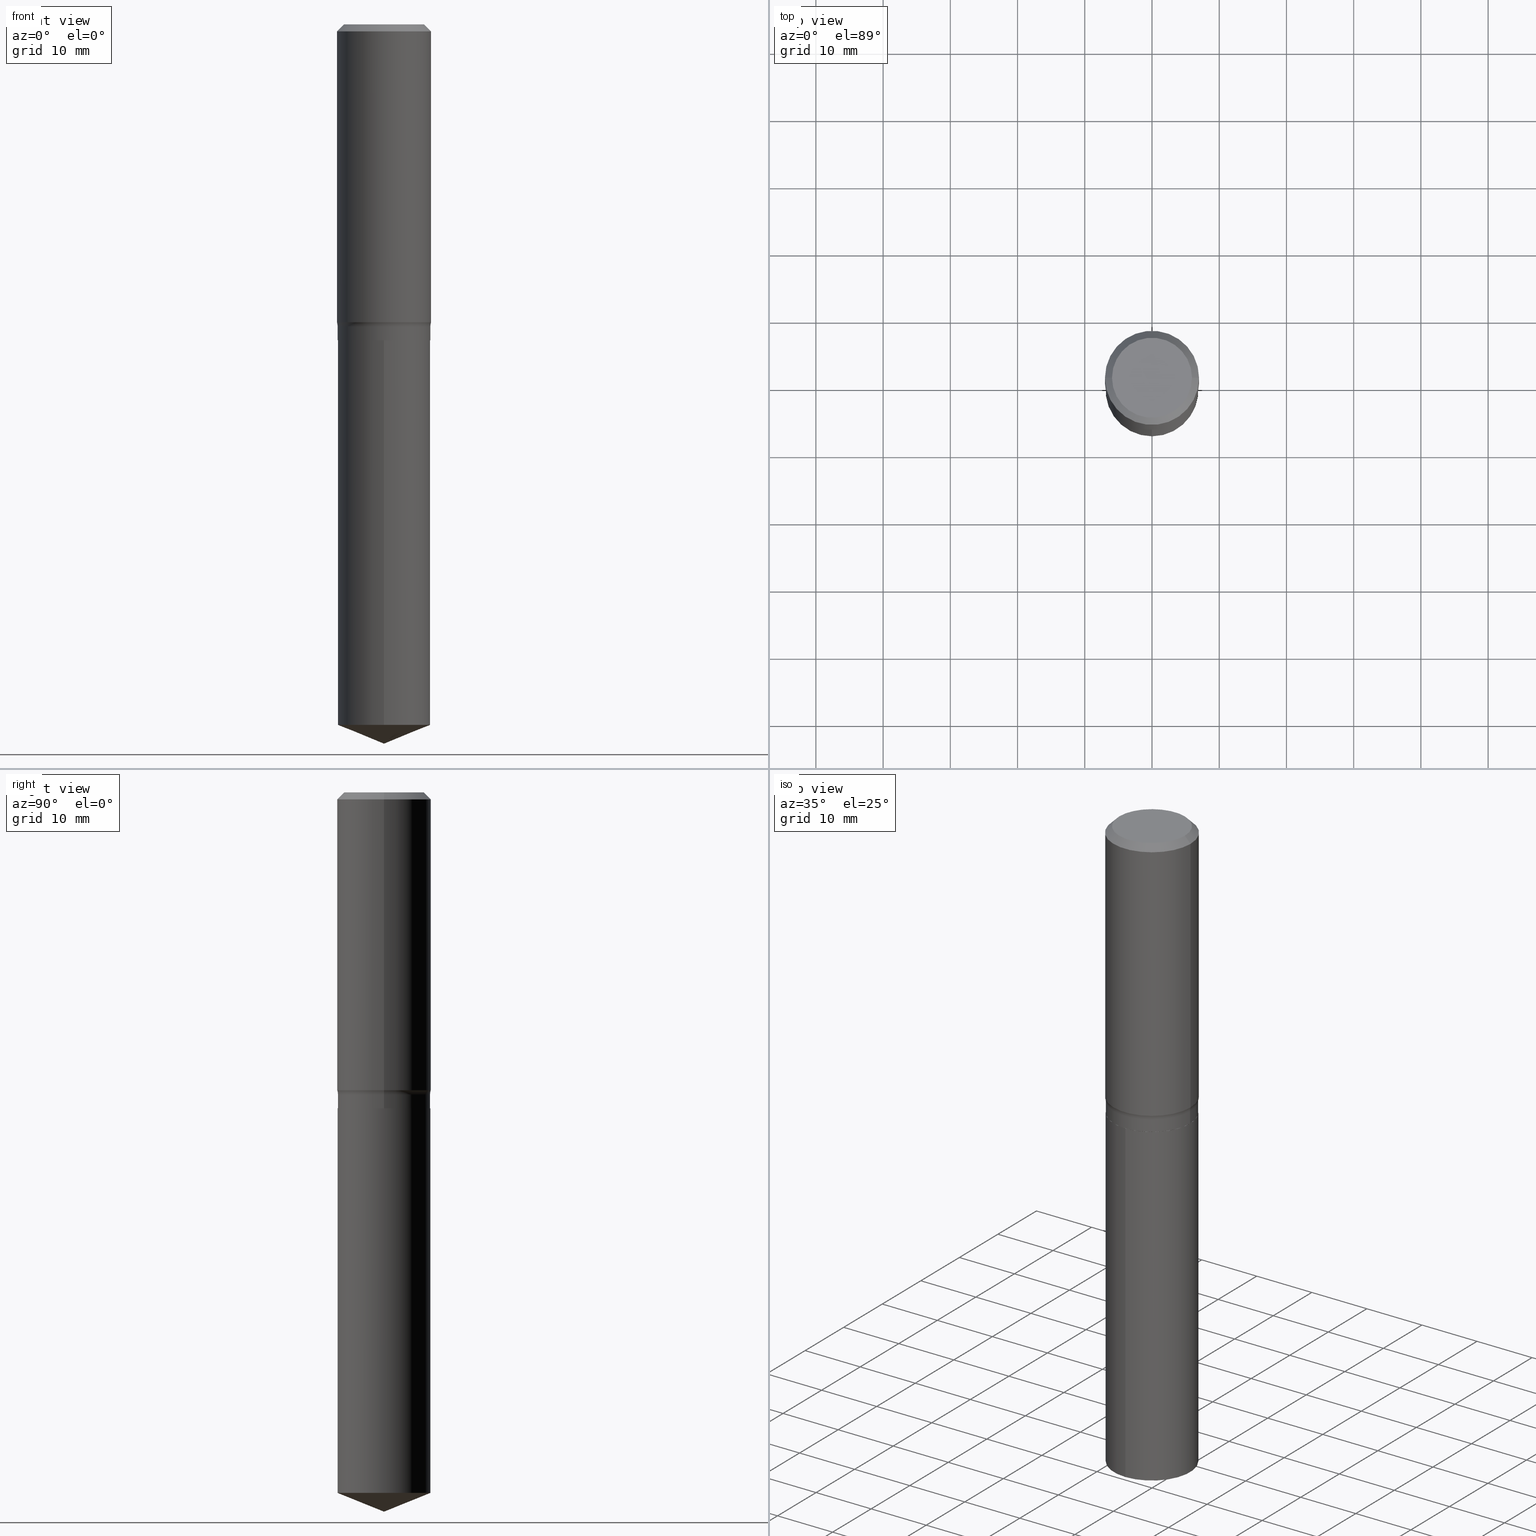
[diagram: canonical four-view strip — front | top / right | iso, engineering-drawing reading convention]
A machine part, canonical four-view strip (front | top / right | iso — engineering-drawing reading convention). The complete STEP part file that produces these views, byte-faithful:
ISO-10303-21;
HEADER;
FILE_DESCRIPTION (( 'STEP AP203' ),
    '1' );
FILE_NAME ('69215.STEP',
    '2024-04-19T17:24:39',
    ( '' ),
    ( '' ),
    'SwSTEP 2.0',
    'SolidWorks 2023',
    '' );
FILE_SCHEMA (( 'CONFIG_CONTROL_DESIGN' ));
ENDSEC;

DATA;
#1 = AXIS2_PLACEMENT_3D ( 'NONE', #415, #236, #5 ) ;
#2 =( NAMED_UNIT ( * ) PLANE_ANGLE_UNIT ( ) SI_UNIT ( $, .RADIAN. ) );
#3 = DIRECTION ( 'NONE',  ( -2.445468806185136597E-29, 3.491481338843145583E-15, 1.000000000000000000 ) ) ;
#4 = MANIFOLD_SOLID_BREP ( 'Body-Move/Copy2[1]', #490 ) ;
#5 = DIRECTION ( 'NONE',  ( -6.982962677686266711E-15, -1.000000000000000000, 3.498761904101812964E-15 ) ) ;
#6 = ORIENTED_EDGE ( 'NONE', *, *, #469, .T. ) ;
#7 = DIRECTION ( 'NONE',  ( -2.445706889125734915E-29, 3.491140390521369310E-15, 1.000000000000000000 ) ) ;
#8 = FACE_OUTER_BOUND ( 'NONE', #213, .T. ) ;
#9 = VECTOR ( 'NONE', #127, 39.37007874015748143 ) ;
#10 = VECTOR ( 'NONE', #36, 39.37007874015748143 ) ;
#11 = DATE_AND_TIME ( #95, #317 ) ;
#12 = EDGE_CURVE ( 'NONE', #221, #382, #433, .T. ) ;
#13 = VERTEX_POINT ( 'NONE', #78 ) ;
#14 = CARTESIAN_POINT ( 'NONE',  ( -0.2756000000000000116, 1.780166675422558965E-15, -0.04134000000000025155 ) ) ;
#15 = DATE_AND_TIME ( #472, #460 ) ;
#16 = CARTESIAN_POINT ( 'NONE',  ( -0.2756000000000002892, -4.132259510290183971E-15, -1.744392909189378837 ) ) ;
#17 = EDGE_CURVE ( 'NONE', #198, #196, #323, .T. ) ;
#18 = DIRECTION ( 'NONE',  ( 2.438088387897960049E-29, -3.491481338843145188E-15, -1.000000000000000000 ) ) ;
#19 = SECURITY_CLASSIFICATION_LEVEL ( 'unclassified' ) ;
#20 = CARTESIAN_POINT ( 'NONE',  ( -1.002970424325033577E-46, 1.431975951230896486E-32, 4.101342130344485961E-18 ) ) ;
#21 = FACE_OUTER_BOUND ( 'NONE', #43, .T. ) ;
#22 = DIRECTION ( 'NONE',  ( -2.445468806185136597E-29, 3.491481338843145583E-15, 1.000000000000000000 ) ) ;
#23 = ADVANCED_FACE ( 'NONE', ( #8 ), #192, .T. ) ;
#24 = CIRCLE ( 'NONE', #427, 0.2342600000000000238 ) ;
#25 = ORIENTED_EDGE ( 'NONE', *, *, #276, .T. ) ;
#26 = CARTESIAN_POINT ( 'NONE',  ( 0.2342600000000000238, -1.821115673845785155E-15, 4.101342130356573868E-18 ) ) ;
#27 = ORIENTED_EDGE ( 'NONE', *, *, #281, .F. ) ;
#28 = DIRECTION ( 'NONE',  ( -2.445706889125734915E-29, 3.491140390521369310E-15, 1.000000000000000000 ) ) ;
#29 = ORIENTED_EDGE ( 'NONE', *, *, #445, .F. ) ;
#30 = DIRECTION ( 'NONE',  ( 1.000000000000000000, -6.982962677686267499E-15, 0.000000000000000000 ) ) ;
#31 = ORIENTED_EDGE ( 'NONE', *, *, #481, .T. ) ;
#32 = ORIENTED_EDGE ( 'NONE', *, *, #178, .F. ) ;
#33 = ADVANCED_FACE ( 'NONE', ( #158 ), #279, .F. ) ;
#34 =( NAMED_UNIT ( * ) SI_UNIT ( $, .STERADIAN. ) SOLID_ANGLE_UNIT ( ) );
#35 = ORIENTED_EDGE ( 'NONE', *, *, #313, .F. ) ;
#36 = DIRECTION ( 'NONE',  ( -2.445468806185136877E-29, 3.491481338843145188E-15, 1.000000000000000000 ) ) ;
#37 = CARTESIAN_POINT ( 'NONE',  ( 1.010956804476941697E-30, -1.443378385477765070E-16, -0.04134000000000025155 ) ) ;
#38 = AXIS2_PLACEMENT_3D ( 'NONE', #211, #278, #428 ) ;
#39 = DIRECTION ( 'NONE',  ( -6.982962677686265133E-15, -1.000000000000000000, 4.022599659362065925E-15 ) ) ;
#40 = EDGE_LOOP ( 'NONE', ( #341, #116 ) ) ;
#41 = EDGE_CURVE ( 'NONE', #88, #231, #45, .T. ) ;
#42 = DIRECTION ( 'NONE',  ( 6.982962677686265922E-15, 1.000000000000000000, -3.491140390521369704E-15 ) ) ;
#43 = EDGE_LOOP ( 'NONE', ( #120, #148, #144, #384 ) ) ;
#44 = CARTESIAN_POINT ( 'NONE',  ( 4.325789771260888308E-29, -6.176081340279640661E-15, -1.768900000000000139 ) ) ;
#45 = CIRCLE ( 'NONE', #141, 0.2716500000000000026 ) ;
#46 = AXIS2_PLACEMENT_3D ( 'NONE', #491, #117, #238 ) ;
#47 = COORDINATED_UNIVERSAL_TIME_OFFSET ( 5, 0, .BEHIND. ) ;
#48 = FACE_OUTER_BOUND ( 'NONE', #40, .T. ) ;
#49 = APPROVAL_STATUS ( 'not_yet_approved' ) ;
#50 = CARTESIAN_POINT ( 'NONE',  ( 0.2756000000000000116, -2.068842352518111732E-15, -0.04134000000000025155 ) ) ;
#51 = EDGE_CURVE ( 'NONE', #221, #198, #420, .T. ) ;
#52 = APPROVAL_ROLE ( '' ) ;
#53 = DIRECTION ( 'NONE',  ( -0.7071067811865453523, 2.468850131082234184E-15, -0.7071067811865496822 ) ) ;
#54 = ADVANCED_FACE ( 'NONE', ( #241 ), #322, .T. ) ;
#55 = CC_DESIGN_DATE_AND_TIME_ASSIGNMENT ( #11, #124, ( #82 ) ) ;
#56 = CALENDAR_DATE ( 2024, 19, 4 ) ;
#57 = CONICAL_SURFACE ( 'NONE', #486, 0.2756000000000000116, 0.7853981633974452814 ) ;
#58 = CARTESIAN_POINT ( 'NONE',  ( 0.2716500000000000026, -8.073003151673115070E-15, -1.768900000000000139 ) ) ;
#59 = CC_DESIGN_APPROVAL ( #296, ( #215 ) ) ;
#60 = DIRECTION ( 'NONE',  ( 1.000000000000000000, -6.982962677686266711E-15, 4.876176775795936353E-29 ) ) ;
#61 = FACE_OUTER_BOUND ( 'NONE', #254, .T. ) ;
#62 = EDGE_LOOP ( 'NONE', ( #410, #76, #450, #265 ) ) ;
#63 = AXIS2_PLACEMENT_3D ( 'NONE', #360, #210, #131 ) ;
#64 = DIRECTION ( 'NONE',  ( 6.588037525764794446E-15, 0.9271838545667895337, 0.3746065934159066302 ) ) ;
#65 = VECTOR ( 'NONE', #197, 39.37007874015748143 ) ;
#66 = VERTEX_POINT ( 'NONE', #58 ) ;
#67 = APPROVAL_PERSON_ORGANIZATION ( #282, #483, #243 ) ;
#68 = CARTESIAN_POINT ( 'NONE',  ( 1.930189341692412359E-15, 0.2716499999999935633, -1.850400000000001155 ) ) ;
#69 = EDGE_LOOP ( 'NONE', ( #478, #387 ) ) ;
#70 = CARTESIAN_POINT ( 'NONE',  ( -8.598532850776800283E-28, 1.227390631678855176E-13, 35.15747874015747954 ) ) ;
#71 = ORIENTED_EDGE ( 'NONE', *, *, #191, .F. ) ;
#72 = CARTESIAN_POINT ( 'NONE',  ( 4.523872744561885153E-29, -6.458891328725936072E-15, -1.849900000000000322 ) ) ;
#73 = AXIS2_PLACEMENT_3D ( 'NONE', #102, #145, #407 ) ;
#74 = CARTESIAN_POINT ( 'NONE',  ( 1.003391885295695671E-28, -1.432424324015218274E-14, -4.102846275751880434 ) ) ;
#75 = ADVANCED_FACE ( 'NONE', ( #48 ), #367, .F. ) ;
#76 = ORIENTED_EDGE ( 'NONE', *, *, #126, .F. ) ;
#77 = FACE_OUTER_BOUND ( 'NONE', #217, .T. ) ;
#78 = CARTESIAN_POINT ( 'NONE',  ( 0.2716499999999999471, -8.355813140119411270E-15, -1.849900000000000322 ) ) ;
#79 = EDGE_CURVE ( 'NONE', #231, #88, #269, .T. ) ;
#80 = CARTESIAN_POINT ( 'NONE',  ( -0.2756000000000001227, 1.958255779754836984E-15, -1.355658510874252567E-29 ) ) ;
#81 = TOROIDAL_SURFACE ( 'NONE', #63, 0.3496499999999999608, 0.07799999999999999989 ) ;
#82 = PRODUCT_DEFINITION ( 'UNKNOWN', '', #114, #133 ) ;
#83 = CIRCLE ( 'NONE', #194, 0.2756000000000000116 ) ;
#84 = CC_DESIGN_PERSON_AND_ORGANIZATION_ASSIGNMENT ( #245, #199, ( #114 ) ) ;
#85 = CARTESIAN_POINT ( 'NONE',  ( 4.325789771260888308E-29, -6.176081340279640661E-15, -1.768900000000000139 ) ) ;
#86 = DIRECTION ( 'NONE',  ( 1.000000000000000000, -6.982962677686267499E-15, 0.000000000000000000 ) ) ;
#87 = FACE_OUTER_BOUND ( 'NONE', #295, .T. ) ;
#88 = VERTEX_POINT ( 'NONE', #362 ) ;
#89 = PERSON_AND_ORGANIZATION ( #458, #309 ) ;
#90 = DIRECTION ( 'NONE',  ( -2.445468806185136597E-29, 3.491481338843145583E-15, 1.000000000000000000 ) ) ;
#91 = CARTESIAN_POINT ( 'NONE',  ( 4.325789771260888308E-29, -6.176081340279640661E-15, -1.768900000000000139 ) ) ;
#92 = APPROVAL_ROLE ( '' ) ;
#93 = CYLINDRICAL_SURFACE ( 'NONE', #306, 0.2716500000000000026 ) ;
#94 = DIRECTION ( 'NONE',  ( 1.000000000000000000, -6.982962677686268288E-15, 0.000000000000000000 ) ) ;
#95 = CALENDAR_DATE ( 2024, 19, 4 ) ;
#96 = AXIS2_PLACEMENT_3D ( 'NONE', #318, #319, #473 ) ;
#97 = DIRECTION ( 'NONE',  ( 1.000000000000000000, -6.982962677686267499E-15, 4.876157962347795834E-29 ) ) ;
#98 = DIRECTION ( 'NONE',  ( 2.445468806185136597E-29, -3.491481338843145583E-15, -1.000000000000000000 ) ) ;
#99 = EDGE_LOOP ( 'NONE', ( #273, #31, #489, #32 ) ) ;
#100 = EDGE_CURVE ( 'NONE', #13, #350, #111, .T. ) ;
#101 = DIMENSIONAL_EXPONENTS ( 1.000000000000000000, 0.000000000000000000, 0.000000000000000000, 0.000000000000000000, 0.000000000000000000, 0.000000000000000000, 0.000000000000000000 ) ;
#102 = CARTESIAN_POINT ( 'NONE',  ( 4.525095478964976833E-29, -6.460637069395356787E-15, -1.850400000000000045 ) ) ;
#103 = ORIENTED_EDGE ( 'NONE', *, *, #154, .T. ) ;
#104 = ADVANCED_FACE ( 'NONE', ( #21 ), #93, .T. ) ;
#105 = DIRECTION ( 'NONE',  ( -2.445706889125734915E-29, 3.491140390521369310E-15, 1.000000000000000000 ) ) ;
#106 = AXIS2_PLACEMENT_3D ( 'NONE', #85, #353, #386 ) ;
#107 = DIRECTION ( 'NONE',  ( -2.445468806185136597E-29, 3.491481338843145583E-15, 1.000000000000000000 ) ) ;
#108 = ORIENTED_EDGE ( 'NONE', *, *, #191, .T. ) ;
#109 = CARTESIAN_POINT ( 'NONE',  ( -0.2711500000000000021, -4.534000441381845907E-15, -1.850400000000000045 ) ) ;
#110 = ORIENTED_EDGE ( 'NONE', *, *, #51, .T. ) ;
#111 = CIRCLE ( 'NONE', #338, 0.2716499999999999471 ) ;
#112 = CARTESIAN_POINT ( 'NONE',  ( 4.525095478964977394E-29, -6.460637069395357576E-15, -1.850400000000000267 ) ) ;
#113 = VECTOR ( 'NONE', #482, 39.37007874015748143 ) ;
#114 = PRODUCT_DEFINITION_FORMATION_WITH_SPECIFIED_SOURCE ( 'ANY', '', #228, .NOT_KNOWN. ) ;
#115 =( CONVERSION_BASED_UNIT ( 'INCH', #272 ) LENGTH_UNIT ( ) NAMED_UNIT ( #101 ) );
#116 = ORIENTED_EDGE ( 'NONE', *, *, #320, .T. ) ;
#117 = DIRECTION ( 'NONE',  ( -2.445468806185136597E-29, 3.491481338843145583E-15, 1.000000000000000000 ) ) ;
#118 = DIRECTION ( 'NONE',  ( -6.982962677686265133E-15, -1.000000000000000000, 3.016949744521549444E-15 ) ) ;
#119 = CARTESIAN_POINT ( 'NONE',  ( -0.2716499999999999471, 1.930189341692311779E-15, -1.336228717267745096E-29 ) ) ;
#120 = ORIENTED_EDGE ( 'NONE', *, *, #268, .F. ) ;
#121 = CIRCLE ( 'NONE', #149, 0.2342600000000000238 ) ;
#122 = VECTOR ( 'NONE', #379, 39.37007874015748143 ) ;
#123 = DIRECTION ( 'NONE',  ( 1.000000000000000000, -6.982962677686264344E-15, 0.000000000000000000 ) ) ;
#124 = DATE_TIME_ROLE ( 'creation_date' ) ;
#125 = DIRECTION ( 'NONE',  ( 2.445468806185136597E-29, -3.491481338843145583E-15, -1.000000000000000000 ) ) ;
#126 = EDGE_CURVE ( 'NONE', #304, #225, #121, .T. ) ;
#127 = DIRECTION ( 'NONE',  ( -2.445468806185136877E-29, 3.491481338843145188E-15, 1.000000000000000000 ) ) ;
#128 = PERSON_AND_ORGANIZATION_ROLE ( 'classification_officer' ) ;
#129 = FACE_OUTER_BOUND ( 'NONE', #492, .T. ) ;
#130 = ADVANCED_FACE ( 'NONE', ( #129 ), #81, .F. ) ;
#131 = DIRECTION ( 'NONE',  ( 1.000000000000000000, -6.982962677686265922E-15, 4.883557194083113462E-29 ) ) ;
#132 = PERSON_AND_ORGANIZATION_ROLE ( 'design_owner' ) ;
#133 = DESIGN_CONTEXT ( 'detailed design', #465, 'design' ) ;
#134 = DIRECTION ( 'NONE',  ( -6.982962677686265133E-15, -1.000000000000000000, 3.016949744521549444E-15 ) ) ;
#135 = CONICAL_SURFACE ( 'NONE', #324, 0.2756000000000000116, 0.7853981633974452814 ) ;
#136 = LINE ( 'NONE', #216, #113 ) ;
#137 = DIRECTION ( 'NONE',  ( -6.982962677686266711E-15, -1.000000000000000000, 3.491481338843145583E-15 ) ) ;
#138 = CARTESIAN_POINT ( 'NONE',  ( 4.525095478964976833E-29, -6.460637069395356787E-15, -1.850400000000000045 ) ) ;
#139 = EDGE_LOOP ( 'NONE', ( #423, #406, #237, #442 ) ) ;
#140 = ADVANCED_FACE ( 'NONE', ( #170 ), #474, .T. ) ;
#141 = AXIS2_PLACEMENT_3D ( 'NONE', #112, #263, #118 ) ;
#142 = CARTESIAN_POINT ( 'NONE',  ( 4.265858445153167625E-29, -6.090515290045022138E-15, -1.744392909189378837 ) ) ;
#143 = CIRCLE ( 'NONE', #347, 0.2756000000000002337 ) ;
#144 = ORIENTED_EDGE ( 'NONE', *, *, #266, .T. ) ;
#145 = DIRECTION ( 'NONE',  ( -2.445468806185136597E-29, 3.491481338843145583E-15, 1.000000000000000000 ) ) ;
#146 = ORIENTED_EDGE ( 'NONE', *, *, #100, .F. ) ;
#147 = LINE ( 'NONE', #157, #414 ) ;
#148 = ORIENTED_EDGE ( 'NONE', *, *, #456, .T. ) ;
#149 = AXIS2_PLACEMENT_3D ( 'NONE', #20, #430, #97 ) ;
#150 = DIRECTION ( 'NONE',  ( -1.000000000000000000, 7.105427357601001859E-15, 0.000000000000000000 ) ) ;
#151 = CONICAL_SURFACE ( 'NONE', #46, 0.2711500000000000021, 0.7853981633977896726 ) ;
#152 = CC_DESIGN_SECURITY_CLASSIFICATION ( #215, ( #114 ) ) ;
#153 = ORIENTED_EDGE ( 'NONE', *, *, #100, .T. ) ;
#154 = EDGE_CURVE ( 'NONE', #370, #252, #249, .T. ) ;
#155 = DIRECTION ( 'NONE',  ( -2.438088387897960049E-29, 3.491481338843145188E-15, 1.000000000000000000 ) ) ;
#156 = EDGE_LOOP ( 'NONE', ( #446, #110, #35, #161 ) ) ;
#157 = CARTESIAN_POINT ( 'NONE',  ( 0.2716499999999999471, -1.896921811393474014E-15, 1.324613421144965822E-29 ) ) ;
#158 = FACE_OUTER_BOUND ( 'NONE', #139, .T. ) ;
#159 = CIRCLE ( 'NONE', #201, 0.2716500000000000026 ) ;
#160 = MANIFOLD_SOLID_BREP ( 'Body-Move/Copy2[2]', #337 ) ;
#161 = ORIENTED_EDGE ( 'NONE', *, *, #467, .F. ) ;
#162 = CALENDAR_DATE ( 2024, 19, 4 ) ;
#163 = FACE_OUTER_BOUND ( 'NONE', #219, .T. ) ;
#164 = EDGE_CURVE ( 'NONE', #66, #382, #476, .T. ) ;
#165 = DIRECTION ( 'NONE',  ( -2.445468806185136597E-29, 3.491481338843145583E-15, 1.000000000000000000 ) ) ;
#166 = CIRCLE ( 'NONE', #73, 0.2711500000000000021 ) ;
#167 = CC_DESIGN_PERSON_AND_ORGANIZATION_ASSIGNMENT ( #89, #132, ( #228 ) ) ;
#168 = FACE_OUTER_BOUND ( 'NONE', #62, .T. ) ;
#169 = COORDINATED_UNIVERSAL_TIME_OFFSET ( 5, 0, .BEHIND. ) ;
#170 = FACE_OUTER_BOUND ( 'NONE', #462, .T. ) ;
#171 = CARTESIAN_POINT ( 'NONE',  ( 4.525095478964977954E-29, -6.460637069395358365E-15, -1.850400000000000489 ) ) ;
#172 = AXIS2_PLACEMENT_3D ( 'NONE', #44, #267, #356 ) ;
#173 = CC_DESIGN_PERSON_AND_ORGANIZATION_ASSIGNMENT ( #468, #247, ( #114 ) ) ;
#174 = CIRCLE ( 'NONE', #290, 0.2711500000000000021 ) ;
#175 = CARTESIAN_POINT ( 'NONE',  ( -0.2716499999999999471, -4.387296992810476194E-15, -1.849900000000000322 ) ) ;
#176 = DIRECTION ( 'NONE',  ( 1.000000000000000000, -6.982962677686267499E-15, 4.876176775795935793E-29 ) ) ;
#177 = ORIENTED_EDGE ( 'NONE', *, *, #268, .T. ) ;
#178 = EDGE_CURVE ( 'NONE', #304, #198, #283, .T. ) ;
#179 = CARTESIAN_POINT ( 'NONE',  ( -1.002970424325033577E-46, 1.431975951230896486E-32, 4.101342130344485961E-18 ) ) ;
#180 = ADVANCED_FACE ( 'NONE', ( #163 ), #325, .T. ) ;
#181 = DIRECTION ( 'NONE',  ( -2.445468806185136597E-29, 3.491481338843145583E-15, 1.000000000000000000 ) ) ;
#182 = VECTOR ( 'NONE', #397, 39.37007874015748143 ) ;
#183 = EDGE_LOOP ( 'NONE', ( #71, #377, #380 ) ) ;
#184 = LOCAL_TIME ( 13, 24, 39.00000000000000000, #401 ) ;
#185 = LINE ( 'NONE', #419, #10 ) ;
#186 = ORIENTED_EDGE ( 'NONE', *, *, #187, .F. ) ;
#187 = EDGE_CURVE ( 'NONE', #233, #221, #261, .T. ) ;
#188 = ORIENTED_EDGE ( 'NONE', *, *, #312, .T. ) ;
#189 = ADVANCED_FACE ( 'NONE', ( #168 ), #57, .T. ) ;
#190 = LINE ( 'NONE', #232, #65 ) ;
#191 = EDGE_CURVE ( 'NONE', #336, #370, #425, .T. ) ;
#192 = CONICAL_SURFACE ( 'NONE', #260, 0.2711500000000000021, 0.7853981633977896726 ) ;
#193 = ORIENTED_EDGE ( 'NONE', *, *, #437, .F. ) ;
#194 = AXIS2_PLACEMENT_3D ( 'NONE', #294, #301, #475 ) ;
#195 = LINE ( 'NONE', #119, #280 ) ;
#196 = VERTEX_POINT ( 'NONE', #50 ) ;
#197 = DIRECTION ( 'NONE',  ( 0.7071067811865453523, -7.319954787623248157E-15, -0.7071067811865496822 ) ) ;
#198 = VERTEX_POINT ( 'NONE', #204 ) ;
#199 = PERSON_AND_ORGANIZATION_ROLE ( 'design_supplier' ) ;
#200 = ORIENTED_EDGE ( 'NONE', *, *, #226, .T. ) ;
#201 = AXIS2_PLACEMENT_3D ( 'NONE', #74, #7, #39 ) ;
#202 = CARTESIAN_POINT ( 'NONE',  ( 4.525095478964977954E-29, -6.460637069395358365E-15, -1.850400000000000489 ) ) ;
#203 = APPROVAL_DATE_TIME ( #398, #483 ) ;
#204 = CARTESIAN_POINT ( 'NONE',  ( -0.2756000000000000116, -1.159170784541562277E-15, -0.04134000000000025155 ) ) ;
#205 = SHAPE_DEFINITION_REPRESENTATION ( #300, #277 ) ;
#206 = CARTESIAN_POINT ( 'NONE',  ( 0.000000000000000000, 0.000000000000000000, 0.000000000000000000 ) ) ;
#207 = AXIS2_PLACEMENT_3D ( 'NONE', #402, #288, #394 ) ;
#208 = CONICAL_SURFACE ( 'NONE', #1, 97.44436430772883284, 1.186823891356146410 ) ;
#209 = APPROVAL_STATUS ( 'not_yet_approved' ) ;
#210 = DIRECTION ( 'NONE',  ( -2.445468806185136597E-29, 3.491481338843145583E-15, 1.000000000000000000 ) ) ;
#211 = CARTESIAN_POINT ( 'NONE',  ( 1.003391885295695671E-28, -1.432424324015218274E-14, -4.102846275751880434 ) ) ;
#212 = CARTESIAN_POINT ( 'NONE',  ( -0.2716500000000000026, -4.387296992810476194E-15, -1.768900000000000139 ) ) ;
#213 = EDGE_LOOP ( 'NONE', ( #188, #416, #146, #229 ) ) ;
#214 = AXIS2_PLACEMENT_3D ( 'NONE', #421, #351, #42 ) ;
#215 = SECURITY_CLASSIFICATION ( '', '', #19 ) ;
#216 = CARTESIAN_POINT ( 'NONE',  ( 1.930189341692357138E-15, 0.2716499999999935633, -1.850400000000001377 ) ) ;
#217 = EDGE_LOOP ( 'NONE', ( #449, #259 ) ) ;
#218 = DIRECTION ( 'NONE',  ( 1.000000000000000000, -6.982962677686255667E-15, 0.000000000000000000 ) ) ;
#219 = EDGE_LOOP ( 'NONE', ( #302, #25, #418, #354 ) ) ;
#220 = DIRECTION ( 'NONE',  ( -6.982962677686266711E-15, -1.000000000000000000, 3.498761904101812964E-15 ) ) ;
#221 = VERTEX_POINT ( 'NONE', #16 ) ;
#222 = AXIS2_PLACEMENT_3D ( 'NONE', #466, #18, #471 ) ;
#223 = CIRCLE ( 'NONE', #372, 0.07800000000000002764 ) ;
#224 = LINE ( 'NONE', #439, #297 ) ;
#225 = VERTEX_POINT ( 'NONE', #26 ) ;
#226 = EDGE_CURVE ( 'NONE', #342, #314, #166, .T. ) ;
#227 = DIRECTION ( 'NONE',  ( 1.000000000000000000, -6.982962677686265922E-15, 4.876176775795935793E-29 ) ) ;
#228 = PRODUCT ( '69215', '69215', '', ( #348 ) ) ;
#229 = ORIENTED_EDGE ( 'NONE', *, *, #305, .F. ) ;
#230 = APPLICATION_PROTOCOL_DEFINITION ( 'international standard', 'config_control_design', 1994, #393 ) ;
#231 = VERTEX_POINT ( 'NONE', #68 ) ;
#232 = CARTESIAN_POINT ( 'NONE',  ( 0.2756000000000000116, -2.035091086733610886E-15, -0.04134000000000025155 ) ) ;
#233 = VERTEX_POINT ( 'NONE', #477 ) ;
#234 = AXIS2_PLACEMENT_3D ( 'NONE', #308, #452, #264 ) ;
#235 = APPROVAL_PERSON_ORGANIZATION ( #429, #357, #92 ) ;
#236 = DIRECTION ( 'NONE',  ( -2.445706889125734915E-29, 3.491140390521369310E-15, 1.000000000000000000 ) ) ;
#237 = ORIENTED_EDGE ( 'NONE', *, *, #437, .T. ) ;
#238 = DIRECTION ( 'NONE',  ( 1.000000000000000000, -6.982962677686264344E-15, 0.000000000000000000 ) ) ;
#239 = ORIENTED_EDGE ( 'NONE', *, *, #164, .T. ) ;
#240 = APPROVAL_DATE_TIME ( #366, #357 ) ;
#241 = FACE_OUTER_BOUND ( 'NONE', #311, .T. ) ;
#242 = VECTOR ( 'NONE', #292, 39.37007874015748143 ) ;
#243 = APPROVAL_ROLE ( '' ) ;
#244 = CARTESIAN_POINT ( 'NONE',  ( 1.030190374378450497E-28, -1.470803979065954994E-14, -4.212600000000000122 ) ) ;
#245 = PERSON_AND_ORGANIZATION ( #458, #309 ) ;
#246 = DIRECTION ( 'NONE',  ( 1.000000000000000000, -6.982962677686266711E-15, 0.000000000000000000 ) ) ;
#247 = PERSON_AND_ORGANIZATION_ROLE ( 'creator' ) ;
#248 = DIRECTION ( 'NONE',  ( -2.445468806185136597E-29, 3.491481338843145583E-15, 1.000000000000000000 ) ) ;
#249 = CIRCLE ( 'NONE', #38, 0.2716500000000000026 ) ;
#250 = DIRECTION ( 'NONE',  ( 1.000000000000000000, -6.982962677686266711E-15, 4.876176775795936353E-29 ) ) ;
#251 = CARTESIAN_POINT ( 'NONE',  ( 1.930189341692412753E-15, 0.2716499999999857917, -4.102846275751881322 ) ) ;
#252 = VERTEX_POINT ( 'NONE', #251 ) ;
#253 = LINE ( 'NONE', #376, #242 ) ;
#254 = EDGE_LOOP ( 'NONE', ( #103, #177, #422, #299 ) ) ;
#255 = DIRECTION ( 'NONE',  ( 1.000000000000000000, -6.982962677686268288E-15, 0.000000000000000000 ) ) ;
#256 = ORIENTED_EDGE ( 'NONE', *, *, #469, .F. ) ;
#257 = CARTESIAN_POINT ( 'NONE',  ( 0.000000000000000000, 0.000000000000000000, 0.000000000000000000 ) ) ;
#258 = DIRECTION ( 'NONE',  ( -2.445468806185136597E-29, 3.491481338843145583E-15, 1.000000000000000000 ) ) ;
#259 = ORIENTED_EDGE ( 'NONE', *, *, #226, .F. ) ;
#260 = AXIS2_PLACEMENT_3D ( 'NONE', #390, #389, #123 ) ;
#261 = CIRCLE ( 'NONE', #96, 0.2756000000000002337 ) ;
#262 = PLANE ( 'NONE',  #214 ) ;
#263 = DIRECTION ( 'NONE',  ( -2.445706889125734915E-29, 3.491140390521369310E-15, 1.000000000000000000 ) ) ;
#264 = DIRECTION ( 'NONE',  ( 1.000000000000000000, 0.000000000000000000, 0.000000000000000000 ) ) ;
#265 = ORIENTED_EDGE ( 'NONE', *, *, #17, .T. ) ;
#266 = EDGE_CURVE ( 'NONE', #370, #88, #224, .T. ) ;
#267 = DIRECTION ( 'NONE',  ( -2.445468806185136597E-29, 3.491481338843145583E-15, 1.000000000000000000 ) ) ;
#268 = EDGE_CURVE ( 'NONE', #252, #231, #136, .T. ) ;
#269 = CIRCLE ( 'NONE', #207, 0.2716500000000000026 ) ;
#270 = ORIENTED_EDGE ( 'NONE', *, *, #359, .F. ) ;
#271 = AXIS2_PLACEMENT_3D ( 'NONE', #257, #22, #176 ) ;
#272 = LENGTH_MEASURE_WITH_UNIT ( LENGTH_MEASURE( 0.02539999999999999897 ), #381 );
#273 = ORIENTED_EDGE ( 'NONE', *, *, #320, .F. ) ;
#274 = PERSON_AND_ORGANIZATION ( #458, #309 ) ;
#275 = DIRECTION ( 'NONE',  ( -1.000000000000000000, 6.982962677686267499E-15, 0.000000000000000000 ) ) ;
#276 = EDGE_CURVE ( 'NONE', #221, #233, #143, .T. ) ;
#277 = ADVANCED_BREP_SHAPE_REPRESENTATION ( '69215', ( #4, #160, #234 ), #316 ) ;
#278 = DIRECTION ( 'NONE',  ( -2.445706889125734915E-29, 3.491140390521369310E-15, 1.000000000000000000 ) ) ;
#279 = TOROIDAL_SURFACE ( 'NONE', #172, 0.3496499999999999608, 0.07799999999999999989 ) ;
#280 = VECTOR ( 'NONE', #315, 39.37007874015748143 ) ;
#281 = EDGE_CURVE ( 'NONE', #336, #252, #369, .T. ) ;
#282 = PERSON_AND_ORGANIZATION ( #458, #309 ) ;
#283 = LINE ( 'NONE', #14, #392 ) ;
#284 = COORDINATED_UNIVERSAL_TIME_OFFSET ( 5, 0, .BEHIND. ) ;
#285 = ADVANCED_FACE ( 'NONE', ( #444 ), #487, .T. ) ;
#286 = CARTESIAN_POINT ( 'NONE',  ( 0.000000000000000000, 0.000000000000000000, 0.000000000000000000 ) ) ;
#287 = CALENDAR_DATE ( 2024, 19, 4 ) ;
#288 = DIRECTION ( 'NONE',  ( -2.445706889125734915E-29, 3.491140390521369310E-15, 1.000000000000000000 ) ) ;
#289 = AXIS2_PLACEMENT_3D ( 'NONE', #434, #404, #60 ) ;
#290 = AXIS2_PLACEMENT_3D ( 'NONE', #138, #258, #333 ) ;
#291 = CC_DESIGN_APPROVAL ( #483, ( #82 ) ) ;
#292 = DIRECTION ( 'NONE',  ( 0.7071067811867889352, -2.468850131084785360E-15, 0.7071067811863060992 ) ) ;
#293 = DIRECTION ( 'NONE',  ( -6.982962677686265133E-15, -1.000000000000000000, 3.016949744521549444E-15 ) ) ;
#294 = CARTESIAN_POINT ( 'NONE',  ( 1.010956804476941697E-30, -1.443378385477765070E-16, -0.04134000000000025155 ) ) ;
#295 = EDGE_LOOP ( 'NONE', ( #270, #200, #310, #488 ) ) ;
#296 = APPROVAL ( #49, 'UNSPECIFIED' ) ;
#297 = VECTOR ( 'NONE', #335, 39.37007874015748143 ) ;
#298 = DIRECTION ( 'NONE',  ( -2.445468806185136597E-29, 3.491481338843145583E-15, 1.000000000000000000 ) ) ;
#299 = ORIENTED_EDGE ( 'NONE', *, *, #266, .F. ) ;
#300 = PRODUCT_DEFINITION_SHAPE ( 'NONE', 'NONE',  #82 ) ;
#301 = DIRECTION ( 'NONE',  ( -2.445468806185136597E-29, 3.491481338843145583E-15, 1.000000000000000000 ) ) ;
#302 = ORIENTED_EDGE ( 'NONE', *, *, #51, .F. ) ;
#303 = PRODUCT_RELATED_PRODUCT_CATEGORY ( 'detail', '', ( #228 ) ) ;
#304 = VERTEX_POINT ( 'NONE', #373 ) ;
#305 = EDGE_CURVE ( 'NONE', #314, #13, #253, .T. ) ;
#306 = AXIS2_PLACEMENT_3D ( 'NONE', #202, #431, #134 ) ;
#307 = CIRCLE ( 'NONE', #470, 0.2716499999999999471 ) ;
#308 = CARTESIAN_POINT ( 'NONE',  ( 0.000000000000000000, 0.000000000000000000, 0.000000000000000000 ) ) ;
#309 = ORGANIZATION ( 'UNSPECIFIED', 'UNSPECIFIED', '' ) ;
#310 = ORIENTED_EDGE ( 'NONE', *, *, #305, .T. ) ;
#311 = EDGE_LOOP ( 'NONE', ( #153, #6, #484, #29 ) ) ;
#312 = EDGE_CURVE ( 'NONE', #314, #342, #174, .T. ) ;
#313 = EDGE_CURVE ( 'NONE', #196, #198, #83, .T. ) ;
#314 = VERTEX_POINT ( 'NONE', #480 ) ;
#315 = DIRECTION ( 'NONE',  ( -2.445468806185136877E-29, 3.491481338843145188E-15, 1.000000000000000000 ) ) ;
#316 =( GEOMETRIC_REPRESENTATION_CONTEXT ( 3 ) GLOBAL_UNCERTAINTY_ASSIGNED_CONTEXT ( ( #343 ) ) GLOBAL_UNIT_ASSIGNED_CONTEXT ( ( #115, #2, #34 ) ) REPRESENTATION_CONTEXT ( 'NONE', 'WORKASPACE' ) );
#317 = LOCAL_TIME ( 13, 24, 39.00000000000000000, #396 ) ;
#318 = CARTESIAN_POINT ( 'NONE',  ( 4.265858445153167625E-29, -6.090515290045022138E-15, -1.744392909189378837 ) ) ;
#319 = DIRECTION ( 'NONE',  ( -2.445468806185136597E-29, 3.491481338843145583E-15, 1.000000000000000000 ) ) ;
#320 = EDGE_CURVE ( 'NONE', #225, #304, #24, .T. ) ;
#321 = PERSON_AND_ORGANIZATION ( #458, #309 ) ;
#322 = CYLINDRICAL_SURFACE ( 'NONE', #485, 0.2716499999999999471 ) ;
#323 = CIRCLE ( 'NONE', #371, 0.2756000000000000116 ) ;
#324 = AXIS2_PLACEMENT_3D ( 'NONE', #436, #98, #417 ) ;
#325 = CYLINDRICAL_SURFACE ( 'NONE', #355, 0.2756000000000001227 ) ;
#326 = ADVANCED_FACE ( 'NONE', ( #411 ), #339, .T. ) ;
#327 = APPROVAL_DATE_TIME ( #15, #296 ) ;
#328 = EDGE_CURVE ( 'NONE', #350, #13, #307, .T. ) ;
#329 = FACE_OUTER_BOUND ( 'NONE', #99, .T. ) ;
#330 = AXIS2_PLACEMENT_3D ( 'NONE', #461, #155, #227 ) ;
#331 = LOCAL_TIME ( 13, 24, 39.00000000000000000, #47 ) ;
#332 = LINE ( 'NONE', #109, #122 ) ;
#333 = DIRECTION ( 'NONE',  ( 1.000000000000000000, -6.982962677686264344E-15, 0.000000000000000000 ) ) ;
#334 = ORIENTED_EDGE ( 'NONE', *, *, #456, .F. ) ;
#335 = DIRECTION ( 'NONE',  ( -2.445706889125734915E-29, 3.491140390521369704E-15, 1.000000000000000000 ) ) ;
#336 = VERTEX_POINT ( 'NONE', #340 ) ;
#337 = CLOSED_SHELL ( 'NONE', ( #23, #408, #285, #33, #54, #140, #130, #180, #189, #75, #479, #464 ) ) ;
#338 = AXIS2_PLACEMENT_3D ( 'NONE', #399, #248, #94 ) ;
#339 = CONICAL_SURFACE ( 'NONE', #364, 97.44436430772883284, 1.186823891356146410 ) ;
#340 = CARTESIAN_POINT ( 'NONE',  ( 1.030278484113107232E-28, -1.470677800911032177E-14, -4.212600000000000122 ) ) ;
#341 = ORIENTED_EDGE ( 'NONE', *, *, #126, .T. ) ;
#342 = VERTEX_POINT ( 'NONE', #448 ) ;
#343 = UNCERTAINTY_MEASURE_WITH_UNIT (LENGTH_MEASURE( 1.000000000000000082E-05 ), #115, 'distance_accuracy_value', 'NONE');
#344 = DIRECTION ( 'NONE',  ( -2.445468806185136877E-29, 3.491481338843145188E-15, 1.000000000000000000 ) ) ;
#345 = CARTESIAN_POINT ( 'NONE',  ( -0.3496499999999999608, -3.691668664694450245E-15, -1.768900000000000139 ) ) ;
#346 = AXIS2_PLACEMENT_3D ( 'NONE', #345, #352, #150 ) ;
#347 = AXIS2_PLACEMENT_3D ( 'NONE', #142, #298, #30 ) ;
#348 = MECHANICAL_CONTEXT ( 'NONE', #393, 'mechanical' ) ;
#349 = APPROVAL_PERSON_ORGANIZATION ( #361, #296, #52 ) ;
#350 = VERTEX_POINT ( 'NONE', #175 ) ;
#351 = DIRECTION ( 'NONE',  ( 2.445706889125734355E-29, -3.491140390521369704E-15, -1.000000000000000000 ) ) ;
#352 = DIRECTION ( 'NONE',  ( 7.105427357601001859E-15, 1.000000000000000000, -3.491481338843145583E-15 ) ) ;
#353 = DIRECTION ( 'NONE',  ( -2.445468806185136597E-29, 3.491481338843145583E-15, 1.000000000000000000 ) ) ;
#354 = ORIENTED_EDGE ( 'NONE', *, *, #17, .F. ) ;
#355 = AXIS2_PLACEMENT_3D ( 'NONE', #286, #165, #363 ) ;
#356 = DIRECTION ( 'NONE',  ( 1.000000000000000000, -6.982962677686265922E-15, 4.883557194083113462E-29 ) ) ;
#357 = APPROVAL ( #209, 'UNSPECIFIED' ) ;
#358 = APPROVAL_STATUS ( 'not_yet_approved' ) ;
#359 = EDGE_CURVE ( 'NONE', #342, #350, #332, .T. ) ;
#360 = CARTESIAN_POINT ( 'NONE',  ( 4.325789771260888308E-29, -6.176081340279640661E-15, -1.768900000000000139 ) ) ;
#361 = PERSON_AND_ORGANIZATION ( #458, #309 ) ;
#362 = CARTESIAN_POINT ( 'NONE',  ( -1.896921811393429049E-15, -0.2716500000000064419, -1.850399999999999379 ) ) ;
#363 = DIRECTION ( 'NONE',  ( 1.000000000000000000, -6.982962677686267499E-15, 4.876176775795935793E-29 ) ) ;
#364 = AXIS2_PLACEMENT_3D ( 'NONE', #70, #105, #220 ) ;
#365 = LOCAL_TIME ( 13, 24, 39.00000000000000000, #284 ) ;
#366 = DATE_AND_TIME ( #162, #331 ) ;
#367 = PLANE ( 'NONE',  #222 ) ;
#368 = DIRECTION ( 'NONE',  ( -2.445468806185136597E-29, 3.491481338843145583E-15, 1.000000000000000000 ) ) ;
#369 = LINE ( 'NONE', #413, #403 ) ;
#370 = VERTEX_POINT ( 'NONE', #405 ) ;
#371 = AXIS2_PLACEMENT_3D ( 'NONE', #37, #3, #86 ) ;
#372 = AXIS2_PLACEMENT_3D ( 'NONE', #409, #137, #218 ) ;
#373 = CARTESIAN_POINT ( 'NONE',  ( -0.2342600000000000238, 1.707997756148671759E-15, 4.101342130332794026E-18 ) ) ;
#374 = ORIENTED_EDGE ( 'NONE', *, *, #378, .T. ) ;
#375 = CYLINDRICAL_SURFACE ( 'NONE', #459, 0.2716500000000000026 ) ;
#376 = CARTESIAN_POINT ( 'NONE',  ( 0.2711500000000000021, -8.354067399449987400E-15, -1.850400000000000045 ) ) ;
#377 = ORIENTED_EDGE ( 'NONE', *, *, #281, .T. ) ;
#378 = EDGE_CURVE ( 'NONE', #233, #66, #223, .T. ) ;
#379 = DIRECTION ( 'NONE',  ( -0.7071067811867889352, 7.493145998871226640E-15, 0.7071067811863060992 ) ) ;
#380 = ORIENTED_EDGE ( 'NONE', *, *, #154, .F. ) ;
#381 =( LENGTH_UNIT ( ) NAMED_UNIT ( * ) SI_UNIT ( $, .METRE. ) );
#382 = VERTEX_POINT ( 'NONE', #212 ) ;
#383 = FACE_OUTER_BOUND ( 'NONE', #455, .T. ) ;
#384 = ORIENTED_EDGE ( 'NONE', *, *, #79, .F. ) ;
#385 = CC_DESIGN_DATE_AND_TIME_ASSIGNMENT ( #424, #426, ( #215 ) ) ;
#386 = DIRECTION ( 'NONE',  ( 1.000000000000000000, -6.982962677686266711E-15, 0.000000000000000000 ) ) ;
#387 = ORIENTED_EDGE ( 'NONE', *, *, #79, .T. ) ;
#388 = PLANE ( 'NONE',  #330 ) ;
#389 = DIRECTION ( 'NONE',  ( -2.445468806185136597E-29, 3.491481338843145583E-15, 1.000000000000000000 ) ) ;
#390 = CARTESIAN_POINT ( 'NONE',  ( 4.525095478964976833E-29, -6.460637069395356787E-15, -1.850400000000000045 ) ) ;
#391 = APPLICATION_PROTOCOL_DEFINITION ( 'international standard', 'config_control_design', 1994, #465 ) ;
#392 = VECTOR ( 'NONE', #53, 39.37007874015748143 ) ;
#393 = APPLICATION_CONTEXT ( 'configuration controlled 3d designs of mechanical parts and assemblies' ) ;
#394 = DIRECTION ( 'NONE',  ( -6.982962677686265133E-15, -1.000000000000000000, 3.016949744521549444E-15 ) ) ;
#395 = CC_DESIGN_APPROVAL ( #357, ( #114 ) ) ;
#396 = COORDINATED_UNIVERSAL_TIME_OFFSET ( 5, 0, .BEHIND. ) ;
#397 = DIRECTION ( 'NONE',  ( -6.474490251793181784E-15, -0.9271838545667869802, 0.3746065934159131250 ) ) ;
#398 = DATE_AND_TIME ( #287, #365 ) ;
#399 = CARTESIAN_POINT ( 'NONE',  ( 4.523872744561885153E-29, -6.458891328725936072E-15, -1.849900000000000322 ) ) ;
#400 = ADVANCED_FACE ( 'NONE', ( #61 ), #375, .T. ) ;
#401 = COORDINATED_UNIVERSAL_TIME_OFFSET ( 5, 0, .BEHIND. ) ;
#402 = CARTESIAN_POINT ( 'NONE',  ( 4.525095478964977394E-29, -6.460637069395357576E-15, -1.850400000000000267 ) ) ;
#403 = VECTOR ( 'NONE', #64, 39.37007874015748854 ) ;
#404 = DIRECTION ( 'NONE',  ( -2.445468806185136597E-29, 3.491481338843145583E-15, 1.000000000000000000 ) ) ;
#405 = CARTESIAN_POINT ( 'NONE',  ( -1.896921811393374223E-15, -0.2716500000000143800, -4.102846275751879546 ) ) ;
#406 = ORIENTED_EDGE ( 'NONE', *, *, #12, .T. ) ;
#407 = DIRECTION ( 'NONE',  ( 1.000000000000000000, -6.982962677686264344E-15, 0.000000000000000000 ) ) ;
#408 = ADVANCED_FACE ( 'NONE', ( #329 ), #135, .T. ) ;
#409 = CARTESIAN_POINT ( 'NONE',  ( 0.3496499999999999608, -8.617674240532643116E-15, -1.768900000000000139 ) ) ;
#410 = ORIENTED_EDGE ( 'NONE', *, *, #481, .F. ) ;
#411 = FACE_OUTER_BOUND ( 'NONE', #183, .T. ) ;
#412 = ADVANCED_FACE ( 'NONE', ( #454 ), #262, .F. ) ;
#413 = CARTESIAN_POINT ( 'NONE',  ( 1.030279256731474987E-28, -1.470677800911032177E-14, -4.212600000000000122 ) ) ;
#414 = VECTOR ( 'NONE', #344, 39.37007874015748143 ) ;
#415 = CARTESIAN_POINT ( 'NONE',  ( -8.598532850776800283E-28, 1.227390631678855176E-13, 35.15747874015747954 ) ) ;
#416 = ORIENTED_EDGE ( 'NONE', *, *, #359, .T. ) ;
#417 = DIRECTION ( 'NONE',  ( -1.000000000000000000, 6.982962677686267499E-15, 0.000000000000000000 ) ) ;
#418 = ORIENTED_EDGE ( 'NONE', *, *, #467, .T. ) ;
#419 = CARTESIAN_POINT ( 'NONE',  ( 0.2756000000000001227, -1.924504513970336137E-15, 1.343874319409360548E-29 ) ) ;
#420 = LINE ( 'NONE', #80, #9 ) ;
#421 = CARTESIAN_POINT ( 'NONE',  ( 5.824523302695558342E-29, -4.599782466974465520E-15, -1.850400000000000489 ) ) ;
#422 = ORIENTED_EDGE ( 'NONE', *, *, #41, .F. ) ;
#423 = ORIENTED_EDGE ( 'NONE', *, *, #276, .F. ) ;
#424 = DATE_AND_TIME ( #56, #184 ) ;
#425 = LINE ( 'NONE', #244, #182 ) ;
#426 = DATE_TIME_ROLE ( 'classification_date' ) ;
#427 = AXIS2_PLACEMENT_3D ( 'NONE', #179, #107, #441 ) ;
#428 = DIRECTION ( 'NONE',  ( -6.982962677686265133E-15, -1.000000000000000000, 4.022599659362065925E-15 ) ) ;
#429 = PERSON_AND_ORGANIZATION ( #458, #309 ) ;
#430 = DIRECTION ( 'NONE',  ( -2.445468806185136597E-29, 3.491481338843145583E-15, 1.000000000000000000 ) ) ;
#431 = DIRECTION ( 'NONE',  ( -2.445706889125734915E-29, 3.491140390521369310E-15, 1.000000000000000000 ) ) ;
#432 = PERSON_AND_ORGANIZATION_ROLE ( 'creator' ) ;
#433 = CIRCLE ( 'NONE', #346, 0.07800000000000002764 ) ;
#434 = CARTESIAN_POINT ( 'NONE',  ( 0.000000000000000000, 0.000000000000000000, 0.000000000000000000 ) ) ;
#435 = AXIS2_PLACEMENT_3D ( 'NONE', #91, #368, #246 ) ;
#436 = CARTESIAN_POINT ( 'NONE',  ( 1.010956804476941697E-30, -1.443378385477765070E-16, -0.04134000000000025155 ) ) ;
#437 = EDGE_CURVE ( 'NONE', #382, #66, #443, .T. ) ;
#438 = CC_DESIGN_PERSON_AND_ORGANIZATION_ASSIGNMENT ( #321, #432, ( #82 ) ) ;
#439 = CARTESIAN_POINT ( 'NONE',  ( -1.896921811393429049E-15, -0.2716500000000064419, -1.850399999999999823 ) ) ;
#440 = ORIENTED_EDGE ( 'NONE', *, *, #445, .T. ) ;
#441 = DIRECTION ( 'NONE',  ( 1.000000000000000000, -6.982962677686267499E-15, 4.876157962347795834E-29 ) ) ;
#442 = ORIENTED_EDGE ( 'NONE', *, *, #378, .F. ) ;
#443 = CIRCLE ( 'NONE', #106, 0.2716500000000000026 ) ;
#444 = FACE_OUTER_BOUND ( 'NONE', #156, .T. ) ;
#445 = EDGE_CURVE ( 'NONE', #13, #66, #147, .T. ) ;
#446 = ORIENTED_EDGE ( 'NONE', *, *, #187, .T. ) ;
#447 = CC_DESIGN_PERSON_AND_ORGANIZATION_ASSIGNMENT ( #274, #128, ( #215 ) ) ;
#448 = CARTESIAN_POINT ( 'NONE',  ( -0.2711500000000000021, -4.531351214207735495E-15, -1.850400000000000045 ) ) ;
#449 = ORIENTED_EDGE ( 'NONE', *, *, #312, .F. ) ;
#450 = ORIENTED_EDGE ( 'NONE', *, *, #178, .T. ) ;
#451 = ADVANCED_FACE ( 'NONE', ( #383 ), #208, .T. ) ;
#452 = DIRECTION ( 'NONE',  ( 0.000000000000000000, 0.000000000000000000, 1.000000000000000000 ) ) ;
#453 = ORIENTED_EDGE ( 'NONE', *, *, #12, .F. ) ;
#454 = FACE_OUTER_BOUND ( 'NONE', #69, .T. ) ;
#455 = EDGE_LOOP ( 'NONE', ( #27, #108, #334 ) ) ;
#456 = EDGE_CURVE ( 'NONE', #252, #370, #159, .T. ) ;
#457 = ORIENTED_EDGE ( 'NONE', *, *, #328, .T. ) ;
#458 = PERSON ( 'UNSPECIFIED', 'UNSPECIFIED', 'UNSPECIFIED', ('UNSPECIFIED'), ('UNSPECIFIED'), ('UNSPECIFIED') ) ;
#459 = AXIS2_PLACEMENT_3D ( 'NONE', #171, #28, #293 ) ;
#460 = LOCAL_TIME ( 13, 24, 39.00000000000000000, #169 ) ;
#461 = CARTESIAN_POINT ( 'NONE',  ( 8.430567376251486457E-29, -8.677790268251705652E-16, -1.850400000000000489 ) ) ;
#462 = EDGE_LOOP ( 'NONE', ( #256, #457, #440, #193 ) ) ;
#463 = CARTESIAN_POINT ( 'NONE',  ( 1.010956804476941697E-30, -1.443378385477765070E-16, -0.04134000000000025155 ) ) ;
#464 = ADVANCED_FACE ( 'NONE', ( #87 ), #151, .T. ) ;
#465 = APPLICATION_CONTEXT ( 'configuration controlled 3d designs of mechanical parts and assemblies' ) ;
#466 = CARTESIAN_POINT ( 'NONE',  ( -5.014852121625167883E-47, 7.159879756154482429E-33, 2.050671065172242981E-18 ) ) ;
#467 = EDGE_CURVE ( 'NONE', #233, #196, #185, .T. ) ;
#468 = PERSON_AND_ORGANIZATION ( #458, #309 ) ;
#469 = EDGE_CURVE ( 'NONE', #350, #382, #195, .T. ) ;
#470 = AXIS2_PLACEMENT_3D ( 'NONE', #72, #181, #255 ) ;
#471 = DIRECTION ( 'NONE',  ( -1.000000000000000000, 6.982962677686265922E-15, -4.876176775795935793E-29 ) ) ;
#472 = CALENDAR_DATE ( 2024, 19, 4 ) ;
#473 = DIRECTION ( 'NONE',  ( 1.000000000000000000, -6.982962677686267499E-15, 0.000000000000000000 ) ) ;
#474 = CYLINDRICAL_SURFACE ( 'NONE', #289, 0.2716499999999999471 ) ;
#475 = DIRECTION ( 'NONE',  ( 1.000000000000000000, -6.982962677686267499E-15, 0.000000000000000000 ) ) ;
#476 = CIRCLE ( 'NONE', #435, 0.2716500000000000026 ) ;
#477 = CARTESIAN_POINT ( 'NONE',  ( 0.2756000000000002892, -8.015019804015359459E-15, -1.744392909189378837 ) ) ;
#478 = ORIENTED_EDGE ( 'NONE', *, *, #41, .T. ) ;
#479 = ADVANCED_FACE ( 'NONE', ( #77 ), #388, .F. ) ;
#480 = CARTESIAN_POINT ( 'NONE',  ( 0.2711500000000000021, -8.354067399449987400E-15, -1.850400000000000045 ) ) ;
#481 = EDGE_CURVE ( 'NONE', #225, #196, #190, .T. ) ;
#482 = DIRECTION ( 'NONE',  ( -2.445706889125734915E-29, 3.491140390521369704E-15, 1.000000000000000000 ) ) ;
#483 = APPROVAL ( #358, 'UNSPECIFIED' ) ;
#484 = ORIENTED_EDGE ( 'NONE', *, *, #164, .F. ) ;
#485 = AXIS2_PLACEMENT_3D ( 'NONE', #206, #90, #250 ) ;
#486 = AXIS2_PLACEMENT_3D ( 'NONE', #463, #125, #275 ) ;
#487 = CYLINDRICAL_SURFACE ( 'NONE', #271, 0.2756000000000001227 ) ;
#488 = ORIENTED_EDGE ( 'NONE', *, *, #328, .F. ) ;
#489 = ORIENTED_EDGE ( 'NONE', *, *, #313, .T. ) ;
#490 = CLOSED_SHELL ( 'NONE', ( #400, #326, #451, #104, #412 ) ) ;
#491 = CARTESIAN_POINT ( 'NONE',  ( 4.525095478964976833E-29, -6.460637069395356787E-15, -1.850400000000000045 ) ) ;
#492 = EDGE_LOOP ( 'NONE', ( #453, #186, #374, #239 ) ) ;
ENDSEC;
END-ISO-10303-21;
